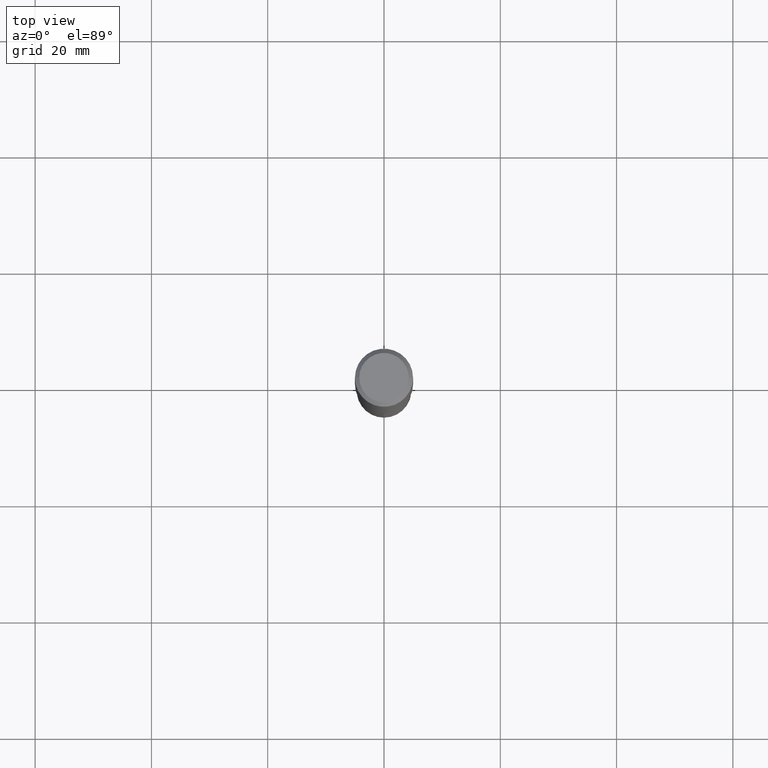
[diagram: clean part render]
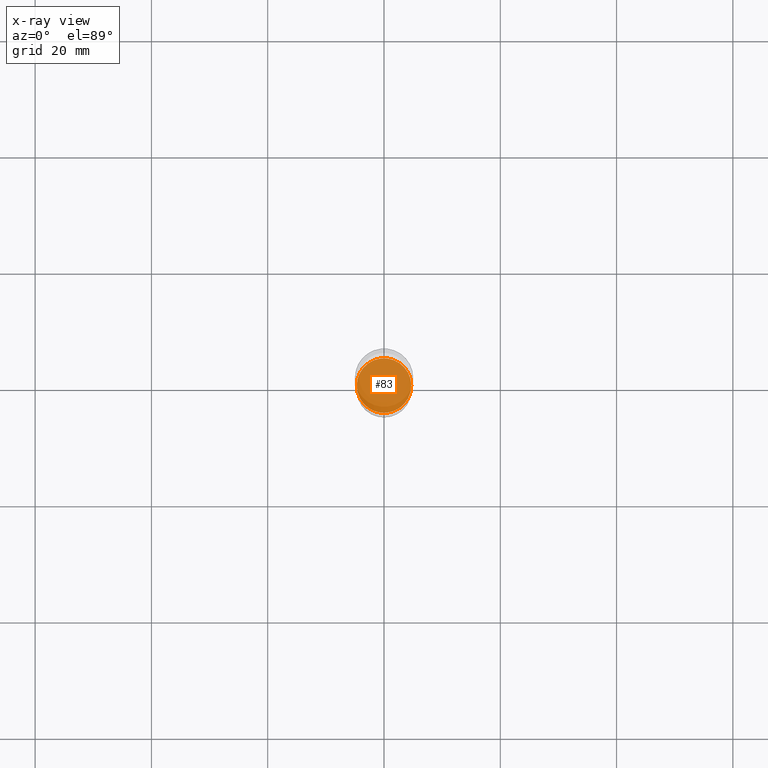
[diagram: x-ray — body ghosted, one internal face saturated and labeled with its STEP entity id]
A machine part, top view, then the same camera in x-ray: the body is ghosted and one INTERNAL B-rep face — a face not visible from any outside direction — is saturated and labeled: STEP entity #83.
In plain terms, the highlighted planar face has unit normal (-0, 0, 1).
Its self-contained STEP definition (entity closure, byte-faithful):
#21 = CIRCLE ( 'NONE', #333, 0.1845499999999999363 ) ;
#24 = CARTESIAN_POINT ( 'NONE',  ( 7.606141627877629779E-29, -1.085955440820383503E-14, -3.110300000000000065 ) ) ;
#57 = AXIS2_PLACEMENT_3D ( 'NONE', #174, #358, #177 ) ;
#83 = ADVANCED_FACE ( 'NONE', ( #205 ), #211, .F. ) ;
#108 = AXIS2_PLACEMENT_3D ( 'NONE', #270, #164, #121 ) ;
#121 = DIRECTION ( 'NONE',  ( 1.000000000000000000, -6.982962677686265922E-15, 0.000000000000000000 ) ) ;
#143 = EDGE_CURVE ( 'NONE', #261, #365, #233, .T. ) ;
#164 = DIRECTION ( 'NONE',  ( -2.445468806185136597E-29, 3.491481338843145583E-15, 1.000000000000000000 ) ) ;
#174 = CARTESIAN_POINT ( 'NONE',  ( 7.606141627877629779E-29, -1.085955440820383503E-14, -3.110300000000000065 ) ) ;
#177 = DIRECTION ( 'NONE',  ( 1.000000000000000000, -6.982962677686265922E-15, 4.876176775795935793E-29 ) ) ;
#179 = DIRECTION ( 'NONE',  ( 1.000000000000000000, -6.982962677686265922E-15, 0.000000000000000000 ) ) ;
#205 = FACE_OUTER_BOUND ( 'NONE', #294, .T. ) ;
#211 = PLANE ( 'NONE',  #57 ) ;
#219 = ORIENTED_EDGE ( 'NONE', *, *, #288, .F. ) ;
#233 = CIRCLE ( 'NONE', #108, 0.1845499999999999363 ) ;
#261 = VERTEX_POINT ( 'NONE', #281 ) ;
#270 = CARTESIAN_POINT ( 'NONE',  ( 7.606141627877629779E-29, -1.085955440820383503E-14, -3.110300000000000065 ) ) ;
#281 = CARTESIAN_POINT ( 'NONE',  ( -0.1845499999999999363, -9.545598562184459782E-15, -3.110300000000000065 ) ) ;
#288 = EDGE_CURVE ( 'NONE', #365, #261, #21, .T. ) ;
#292 = ORIENTED_EDGE ( 'NONE', *, *, #143, .F. ) ;
#294 = EDGE_LOOP ( 'NONE', ( #219, #292 ) ) ;
#319 = DIRECTION ( 'NONE',  ( -2.445468806185136597E-29, 3.491481338843145583E-15, 1.000000000000000000 ) ) ;
#333 = AXIS2_PLACEMENT_3D ( 'NONE', #24, #319, #179 ) ;
#358 = DIRECTION ( 'NONE',  ( -2.438088387897960049E-29, 3.491481338843145188E-15, 1.000000000000000000 ) ) ;
#365 = VERTEX_POINT ( 'NONE', #427 ) ;
#427 = CARTESIAN_POINT ( 'NONE',  ( 0.1845499999999999363, -1.214826017037083551E-14, -3.110300000000000065 ) ) ;